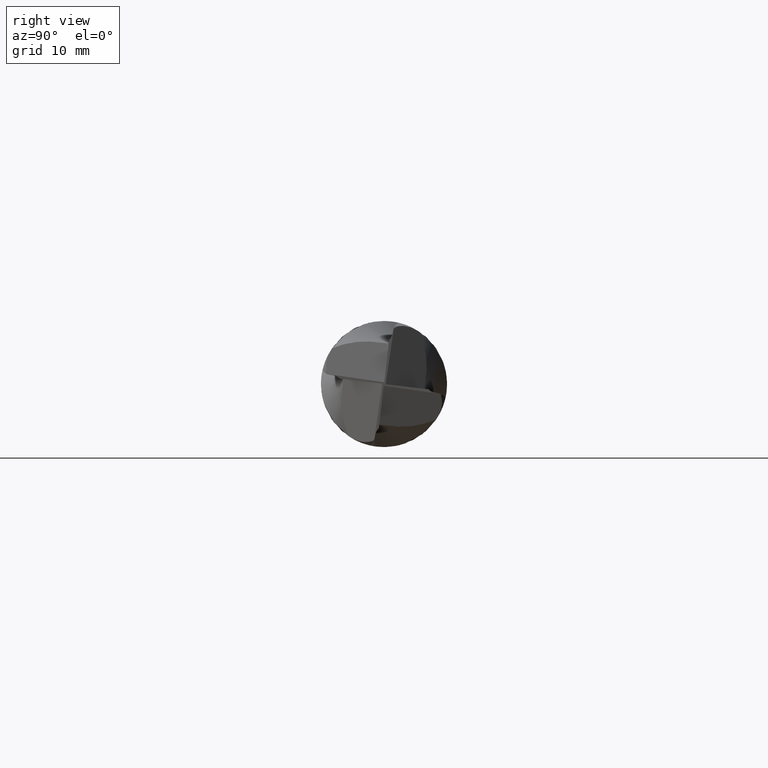
[diagram: clean part render]
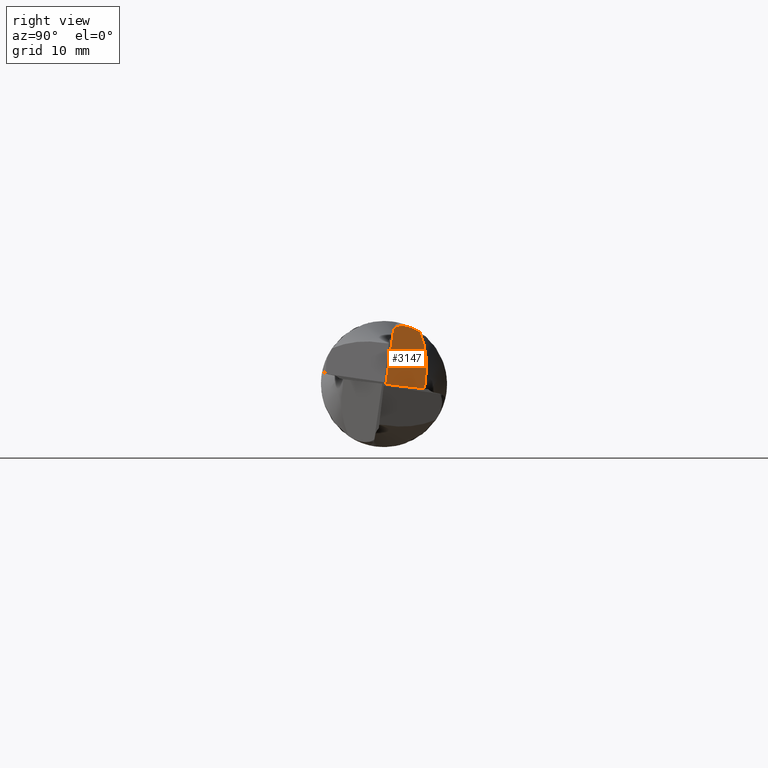
[diagram: same view with one face highlighted and labeled with its STEP entity id]
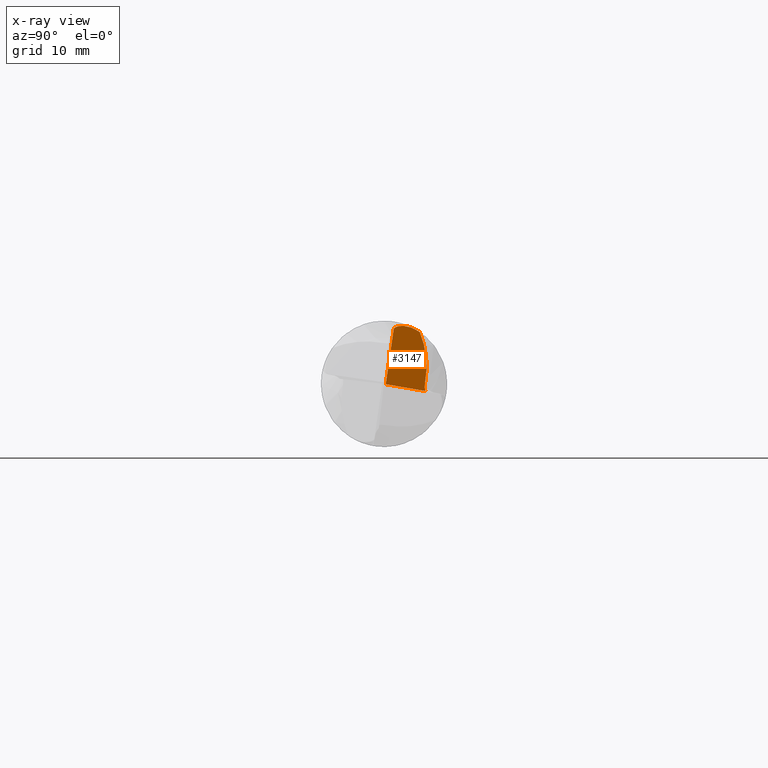
[diagram: x-ray of the same camera — body ghosted, the highlighted face saturated]
A machine part, right view. The second image highlights one B-rep face of the part: STEP entity #3147.
The next image is the same camera in x-ray: the body ghosted, the highlighted face saturated — about 0% of this face is hidden behind the body in this view.
In plain terms, the highlighted planar face has unit normal (0.9539, 0.2957, -0.0509).
Its self-contained STEP definition (entity closure, byte-faithful):
#26 = B_SPLINE_CURVE_WITH_KNOTS ( 'NONE', 3,
 ( #277, #273, #272, #271, #270, #269, #268, #267, #266, #265, #264, #263, #262, #261 ),
 .UNSPECIFIED., .F., .F.,
 ( 4, 2, 2, 2, 2, 2, 4 ),
 ( 7.118998653001791100E-007, 0.0009051794912638577100, 0.001809647082662415300, 0.002714114674060972900, 0.003166348469760252700, 0.003392465367609889000, 0.003618582265459525900 ),
 .UNSPECIFIED. ) ;
#29 = B_SPLINE_CURVE_WITH_KNOTS ( 'NONE', 3,
 ( #587, #284, #291, #279, #287, #280, #218, #285, #290, #186, #298, #297, #295, #293 ),
 .UNSPECIFIED., .F., .F.,
 ( 4, 2, 2, 2, 2, 2, 4 ),
 ( 0.003240335425447058200, 0.003710400609875457800, 0.004180465794303857500, 0.005120596163160656700, 0.007000856900874254300, 0.008881117638587850100, 0.01076137837630144900 ),
 .UNSPECIFIED. ) ;
#46 = B_SPLINE_CURVE_WITH_KNOTS ( 'NONE', 3,
 ( #1001, #981, #973, #978, #979, #980, #976, #982, #972, #667 ),
 .UNSPECIFIED., .F., .F.,
 ( 4, 2, 2, 2, 4 ),
 ( 5.923818445540053600E-006, 0.003507276018845637400, 0.005257952119045686300, 0.006133290169145710000, 0.007008628219245734700 ),
 .UNSPECIFIED. ) ;
#74 =( BOUNDED_CURVE ( )  B_SPLINE_CURVE ( 3, ( #394, #338, #336, #337 ),
 .UNSPECIFIED., .F., .T. ) 
 B_SPLINE_CURVE_WITH_KNOTS ( ( 4, 4 ),
 ( 1.138046724000469900, 1.157835611299588500 ),
 .UNSPECIFIED. ) 
 CURVE ( )  GEOMETRIC_REPRESENTATION_ITEM ( )  RATIONAL_B_SPLINE_CURVE ( ( 1.000000000000000000, 0.9999673669278547100, 0.9999673669278547100, 1.000000000000000000 ) ) 
 REPRESENTATION_ITEM ( '' )  );
#186 = CARTESIAN_POINT ( 'NONE',  ( 40.54208569226268100, 5.343690272376084800, 3.539756952307598200 ) ) ;
#218 = CARTESIAN_POINT ( 'NONE',  ( 40.40305150496165300, 5.300015418904189700, 0.6790593169864118700 ) ) ;
#261 = CARTESIAN_POINT ( 'NONE',  ( 42.00000000000052600, 1.218098298914081200, 6.893202197396003200 ) ) ;
#262 = CARTESIAN_POINT ( 'NONE',  ( 41.99999999999997900, 1.231204551004283300, 6.969387674975903800 ) ) ;
#263 = CARTESIAN_POINT ( 'NONE',  ( 41.99037332466905100, 1.274124528503023800, 7.038382468699806400 ) ) ;
#264 = CARTESIAN_POINT ( 'NONE',  ( 41.96264252249403600, 1.382086694654718800, 7.146018640371647900 ) ) ;
#265 = CARTESIAN_POINT ( 'NONE',  ( 41.94494449662605000, 1.446243216225136200, 7.187125899057812200 ) ) ;
#266 = CARTESIAN_POINT ( 'NONE',  ( 41.88888249165827900, 1.644156295456246100, 7.286443227219689500 ) ) ;
#267 = CARTESIAN_POINT ( 'NONE',  ( 41.84578781538949200, 1.789648634275167400, 7.324174206665171400 ) ) ;
#268 = CARTESIAN_POINT ( 'NONE',  ( 41.71535169111538000, 2.221980305119145800, 7.391669421439801500 ) ) ;
#269 = CARTESIAN_POINT ( 'NONE',  ( 41.62289618172862000, 2.517709621292478300, 7.377224319787934800 ) ) ;
#270 = CARTESIAN_POINT ( 'NONE',  ( 41.43933442429214900, 3.093090784657849900, 7.280175176419718700 ) ) ;
#271 = CARTESIAN_POINT ( 'NONE',  ( 41.34815623467291300, 3.372690851594573000, 7.195921273209821200 ) ) ;
#272 = CARTESIAN_POINT ( 'NONE',  ( 41.17122787697272900, 3.905499169908189600, 6.975772806250130700 ) ) ;
#273 = CARTESIAN_POINT ( 'NONE',  ( 41.08470134437841600, 4.161061252333287700, 6.839004417163702800 ) ) ;
#277 = CARTESIAN_POINT ( 'NONE',  ( 40.99999999999999300, 4.406410515660533100, 6.677091160638482000 ) ) ;
#279 = CARTESIAN_POINT ( 'NONE',  ( 40.39693739316057000, 5.156165240289328500, -0.2717654314843111500 ) ) ;
#280 = CARTESIAN_POINT ( 'NONE',  ( 40.40044421340218900, 5.253954953764664800, 0.3624285527364434800 ) ) ;
#284 = CARTESIAN_POINT ( 'NONE',  ( 40.35894581821249700, 5.196836640887749300, -0.7476687134619721700 ) ) ;
#285 = CARTESIAN_POINT ( 'NONE',  ( 40.42278150962619800, 5.400583888650070100, 1.633582339128421700 ) ) ;
#287 = CARTESIAN_POINT ( 'NONE',  ( 40.40225275938888000, 5.166798741027277800, -0.1102934510086005500 ) ) ;
#290 = CARTESIAN_POINT ( 'NONE',  ( 40.45199421039240000, 5.416691017148015600, 2.274934778613960000 ) ) ;
#291 = CARTESIAN_POINT ( 'NONE',  ( 40.37495507815469900, 5.172105954349292200, -0.5912605937370817300 ) ) ;
#293 = CARTESIAN_POINT ( 'NONE',  ( 40.95458504108302100, 4.537671349305876200, 6.588591558572257900 ) ) ;
#295 = CARTESIAN_POINT ( 'NONE',  ( 40.84738126114989900, 4.783491753030611800, 6.007507890993228000 ) ) ;
#297 = CARTESIAN_POINT ( 'NONE',  ( 40.75667423695395500, 4.972552460987079000, 5.405790857242823000 ) ) ;
#298 = CARTESIAN_POINT ( 'NONE',  ( 40.60310010450783800, 5.254886245412151000, 4.167535932293327900 ) ) ;
#309 = CARTESIAN_POINT ( 'NONE',  ( 40.99999999999999300, 4.406410515660533100, 6.677091160638482000 ) ) ;
#336 = CARTESIAN_POINT ( 'NONE',  ( 40.98479452268932000, 4.450455302482872400, 6.648024699338974700 ) ) ;
#337 = CARTESIAN_POINT ( 'NONE',  ( 40.99999999999999300, 4.406410515660533100, 6.677091160638482000 ) ) ;
#338 = CARTESIAN_POINT ( 'NONE',  ( 40.96965570902433000, 4.494210341559326400, 6.618523869280838100 ) ) ;
#394 = CARTESIAN_POINT ( 'NONE',  ( 40.95458504108302100, 4.537671349305876200, 6.588591558572257900 ) ) ;
#418 = CARTESIAN_POINT ( 'NONE',  ( 40.95458504108302100, 4.537671349305876200, 6.588591558572257900 ) ) ;
#587 = CARTESIAN_POINT ( 'NONE',  ( 40.33825437603768900, 5.237205692323580100, -0.9009609209411835200 ) ) ;
#667 = CARTESIAN_POINT ( 'NONE',  ( 41.94083074469926900, 0.2166918294280936700, -0.03727767853153440100 ) ) ;
#679 = LINE ( 'NONE', #1207, #721 ) ;
#721 = VECTOR ( 'NONE', #1208, 1000.000000000000100 ) ;
#753 = FACE_OUTER_BOUND ( 'NONE', #2049, .T. ) ;
#793 = VERTEX_POINT ( 'NONE', #878 ) ;
#798 = VERTEX_POINT ( 'NONE', #876 ) ;
#803 = VERTEX_POINT ( 'NONE', #871 ) ;
#871 = CARTESIAN_POINT ( 'NONE',  ( 42.00000000000052600, 1.218098298914081200, 6.893202197396003200 ) ) ;
#876 = CARTESIAN_POINT ( 'NONE',  ( 41.94083074469926900, 0.2166918294280936700, -0.03727767853153440100 ) ) ;
#878 = CARTESIAN_POINT ( 'NONE',  ( 40.33825437603768900, 5.237205692323580100, -0.9009609209411835200 ) ) ;
#957 = VERTEX_POINT ( 'NONE', #418 ) ;
#964 = VERTEX_POINT ( 'NONE', #309 ) ;
#972 = CARTESIAN_POINT ( 'NONE',  ( 41.94083074469900700, 0.2661778641534898700, 0.2503802395048606600 ) ) ;
#973 = CARTESIAN_POINT ( 'NONE',  ( 41.97964083107789400, 0.8862989757063495200, 4.582758285559031600 ) ) ;
#976 = CARTESIAN_POINT ( 'NONE',  ( 41.94921341091576700, 0.3882494354319633900, 1.117142110802626500 ) ) ;
#978 = CARTESIAN_POINT ( 'NONE',  ( 41.96439522802155200, 0.6373746271372710000, 2.849935962918742400 ) ) ;
#979 = CARTESIAN_POINT ( 'NONE',  ( 41.95931349075868200, 0.5543994336186333100, 2.272328580252088100 ) ) ;
#980 = CARTESIAN_POINT ( 'NONE',  ( 41.95173770651504000, 0.4297892157791047300, 1.405938404850058900 ) ) ;
#981 = CARTESIAN_POINT ( 'NONE',  ( 41.98982040716318700, 1.052198663683841400, 5.737980237738924000 ) ) ;
#982 = CARTESIAN_POINT ( 'NONE',  ( 41.94428268286318900, 0.3047987584704960900, 0.5396021303041859100 ) ) ;
#1001 = CARTESIAN_POINT ( 'NONE',  ( 42.00000000000052600, 1.218098298914081200, 6.893202197396003200 ) ) ;
#1207 = CARTESIAN_POINT ( 'NONE',  ( 31.01100922619364700, 34.45738171209445300, -5.927732494076799700 ) ) ;
#1208 = DIRECTION ( 'NONE',  ( 0.3000860501352342600, -0.9401025774663968000, 0.1617266408334477900 ) ) ;
#1476 = CARTESIAN_POINT ( 'NONE',  ( 31.01100922619364700, 34.45738171209445300, -5.927732494076799700 ) ) ;
#1477 = PLANE ( 'NONE',  #1859 ) ;
#1478 = DIRECTION ( 'NONE',  ( 0.9539121356363140500, 0.2957417760553591200, -0.05087670765083150000 ) ) ;
#1479 = DIRECTION ( 'NONE',  ( -0.2961252755449760300, 0.9551491093978007300, 0.0000000000000000000 ) ) ;
#1748 = EDGE_CURVE ( 'NONE', #957, #964, #74, .T. ) ;
#1840 = EDGE_CURVE ( 'NONE', #803, #798, #46, .T. ) ;
#1854 = EDGE_CURVE ( 'NONE', #793, #957, #29, .T. ) ;
#1857 = EDGE_CURVE ( 'NONE', #964, #803, #26, .T. ) ;
#1859 = AXIS2_PLACEMENT_3D ( 'NONE', #1476, #1478, #1479 ) ;
#1914 = EDGE_CURVE ( 'NONE', #793, #798, #679, .T. ) ;
#1978 = ORIENTED_EDGE ( 'NONE', *, *, #1840, .T. ) ;
#2049 = EDGE_LOOP ( 'NONE', ( #1978, #2125, #2083, #2113, #2139 ) ) ;
#2083 = ORIENTED_EDGE ( 'NONE', *, *, #1854, .T. ) ;
#2113 = ORIENTED_EDGE ( 'NONE', *, *, #1748, .T. ) ;
#2125 = ORIENTED_EDGE ( 'NONE', *, *, #1914, .F. ) ;
#2139 = ORIENTED_EDGE ( 'NONE', *, *, #1857, .T. ) ;
#3147 = ADVANCED_FACE ( 'NONE', ( #753 ), #1477, .T. ) ;